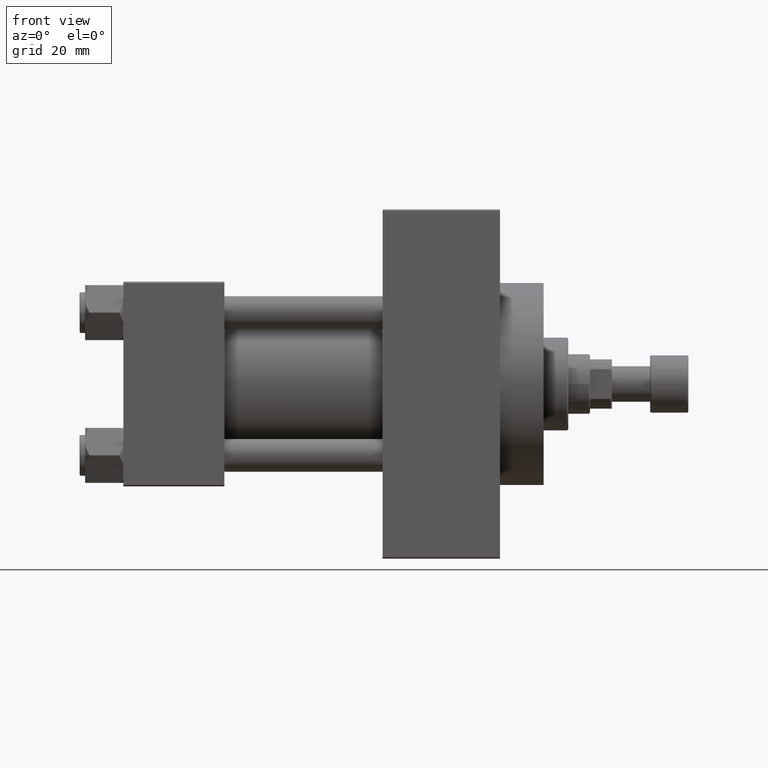
[diagram: clean part render]
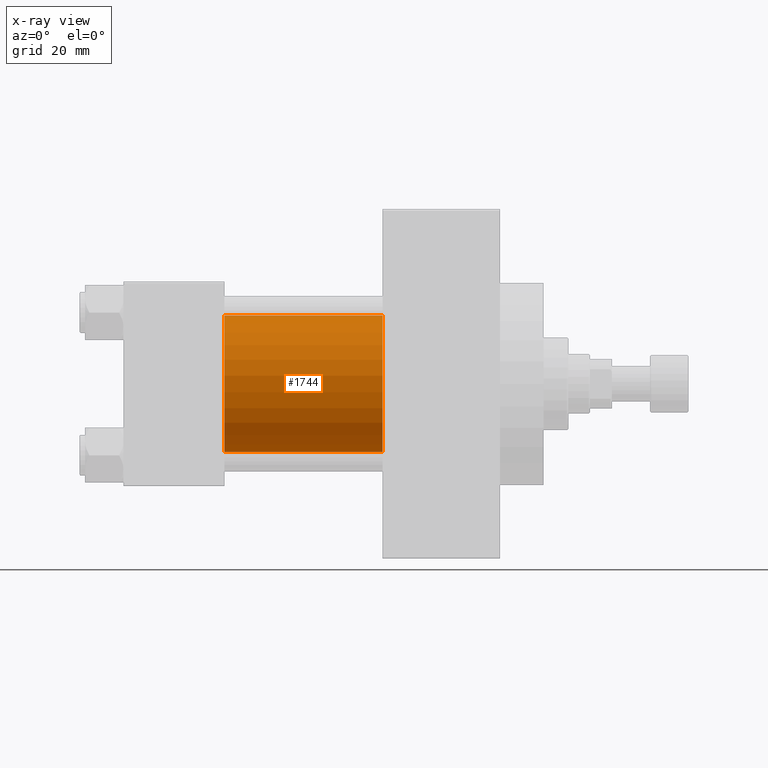
[diagram: x-ray — body ghosted, one internal face saturated and labeled with its STEP entity id]
A machine part, front view, then the same camera in x-ray: the body is ghosted and one INTERNAL B-rep face — a face not visible from any outside direction — is saturated and labeled: STEP entity #1744.
In plain terms, the highlighted cylindrical surface (partial cylindrical patch) has radius 25 mm, axis along (-1, -0, -0).
Its self-contained STEP definition (entity closure, byte-faithful):
#638 = EDGE_CURVE ( 'NONE', #4133, #24931, #10671, .T. ) ;
#1744 = ADVANCED_FACE ( 'NONE', ( #31278 ), #23349, .F. ) ;
#1965 = CARTESIAN_POINT ( 'NONE',  ( 37.00000000000000000, 4.595317839031718093E-16, -25.00000000000000000 ) ) ;
#3453 = VERTEX_POINT ( 'NONE', #6082 ) ;
#4133 = VERTEX_POINT ( 'NONE', #42377 ) ;
#4256 = ORIENTED_EDGE ( 'NONE', *, *, #38888, .F. ) ;
#5062 = CARTESIAN_POINT ( 'NONE',  ( 95.00000000000000000, -2.602085213965210642E-15, 0.000000000000000000 ) ) ;
#5401 = ORIENTED_EDGE ( 'NONE', *, *, #638, .T. ) ;
#6082 = CARTESIAN_POINT ( 'NONE',  ( 95.00000000000000000, -2.602085213965210642E-15, 25.00000000000000000 ) ) ;
#8022 = EDGE_CURVE ( 'NONE', #3453, #4133, #28626, .T. ) ;
#8607 = CARTESIAN_POINT ( 'NONE',  ( 95.00000000000000000, -2.602085213965210642E-15, 25.00000000000000000 ) ) ;
#9333 = AXIS2_PLACEMENT_3D ( 'NONE', #5062, #16113, #42108 ) ;
#9883 = ORIENTED_EDGE ( 'NONE', *, *, #8022, .T. ) ;
#10671 = LINE ( 'NONE', #10903, #23888 ) ;
#10903 = CARTESIAN_POINT ( 'NONE',  ( 95.00000000000000000, 4.595317839031718093E-16, -25.00000000000000000 ) ) ;
#16113 = DIRECTION ( 'NONE',  ( -1.000000000000000000, -0.000000000000000000, -0.000000000000000000 ) ) ;
#17943 = VECTOR ( 'NONE', #44478, 1000.000000000000000 ) ;
#19123 = CARTESIAN_POINT ( 'NONE',  ( 37.00000000000000000, -2.602085213965210642E-15, 25.00000000000000000 ) ) ;
#20206 = VERTEX_POINT ( 'NONE', #19123 ) ;
#20561 = DIRECTION ( 'NONE',  ( 0.000000000000000000, 0.000000000000000000, -1.000000000000000000 ) ) ;
#21283 = DIRECTION ( 'NONE',  ( 1.000000000000000000, 0.000000000000000000, 0.000000000000000000 ) ) ;
#22031 = DIRECTION ( 'NONE',  ( 0.000000000000000000, 0.000000000000000000, -1.000000000000000000 ) ) ;
#22465 = AXIS2_PLACEMENT_3D ( 'NONE', #22517, #25642, #22031 ) ;
#22517 = CARTESIAN_POINT ( 'NONE',  ( 37.00000000000000000, -2.602085213965210642E-15, 0.000000000000000000 ) ) ;
#23349 = CYLINDRICAL_SURFACE ( 'NONE', #9333, 25.00000000000000000 ) ;
#23888 = VECTOR ( 'NONE', #36412, 1000.000000000000000 ) ;
#24931 = VERTEX_POINT ( 'NONE', #1965 ) ;
#25642 = DIRECTION ( 'NONE',  ( 1.000000000000000000, 0.000000000000000000, 0.000000000000000000 ) ) ;
#27785 = CARTESIAN_POINT ( 'NONE',  ( 95.00000000000000000, -2.602085213965210642E-15, 0.000000000000000000 ) ) ;
#28626 = CIRCLE ( 'NONE', #37838, 25.00000000000000000 ) ;
#31278 = FACE_OUTER_BOUND ( 'NONE', #39226, .T. ) ;
#36412 = DIRECTION ( 'NONE',  ( -1.000000000000000000, -0.000000000000000000, -0.000000000000000000 ) ) ;
#37005 = LINE ( 'NONE', #8607, #17943 ) ;
#37838 = AXIS2_PLACEMENT_3D ( 'NONE', #27785, #21283, #20561 ) ;
#38888 = EDGE_CURVE ( 'NONE', #20206, #24931, #41705, .T. ) ;
#39226 = EDGE_LOOP ( 'NONE', ( #9883, #5401, #4256, #41073 ) ) ;
#41073 = ORIENTED_EDGE ( 'NONE', *, *, #45736, .F. ) ;
#41705 = CIRCLE ( 'NONE', #22465, 25.00000000000000000 ) ;
#42108 = DIRECTION ( 'NONE',  ( 0.000000000000000000, 0.000000000000000000, 1.000000000000000000 ) ) ;
#42377 = CARTESIAN_POINT ( 'NONE',  ( 95.00000000000000000, 4.595317839031718093E-16, -25.00000000000000000 ) ) ;
#44478 = DIRECTION ( 'NONE',  ( -1.000000000000000000, -0.000000000000000000, -0.000000000000000000 ) ) ;
#45736 = EDGE_CURVE ( 'NONE', #3453, #20206, #37005, .T. ) ;